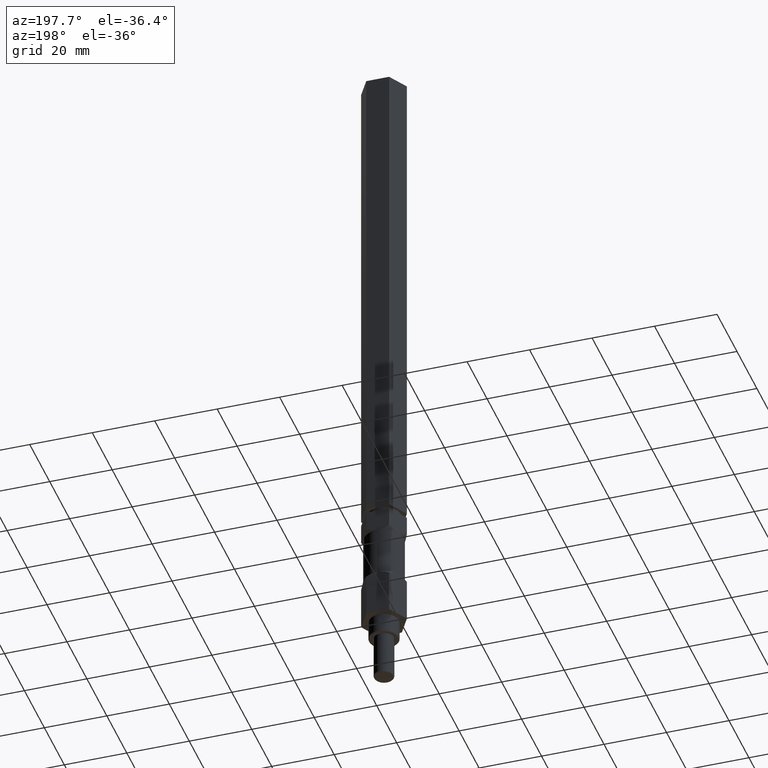
[diagram: clean part render]
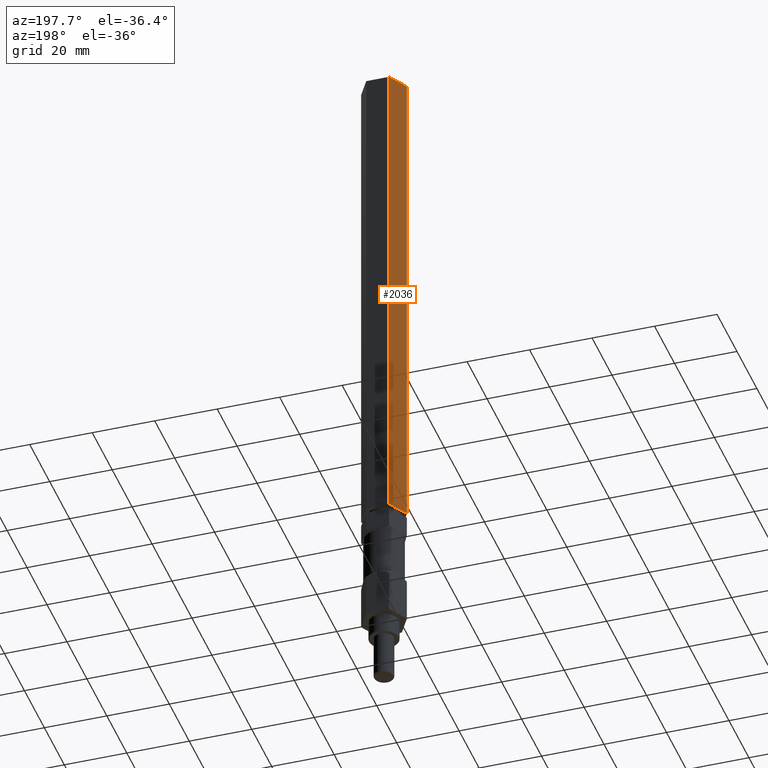
[diagram: same view with one face highlighted and labeled with its STEP entity id]
A machine part, auxiliary view. The second image highlights one B-rep face of the part: STEP entity #2036.
In plain terms, the highlighted planar face has unit normal (0.866, -0.5, 0).
Its self-contained STEP definition (entity closure, byte-faithful):
#10 = CARTESIAN_POINT ( 'NONE',  ( -48.84166809894153971, 35.25928631796895729, -53.68992004042454624 ) ) ;
#84 = LINE ( 'NONE', #676, #2071 ) ;
#140 = VECTOR ( 'NONE', #412, 1000.000000000000000 ) ;
#246 = DIRECTION ( 'NONE',  ( 0.8660254037844390407, -0.4999999999999994449, 0.0000000000000000000 ) ) ;
#390 = EDGE_CURVE ( 'NONE', #1555, #907, #1978, .T. ) ;
#412 = DIRECTION ( 'NONE',  ( -0.0000000000000000000, -0.0000000000000000000, -1.000000000000000000 ) ) ;
#483 = LINE ( 'NONE', #1139, #2043 ) ;
#525 = VERTEX_POINT ( 'NONE', #1290 ) ;
#582 = EDGE_CURVE ( 'NONE', #1855, #907, #84, .T. ) ;
#625 = ORIENTED_EDGE ( 'NONE', *, *, #1291, .T. ) ;
#676 = CARTESIAN_POINT ( 'NONE',  ( -48.84166809894153971, 35.25928631796895729, -53.68992004042454624 ) ) ;
#678 = AXIS2_PLACEMENT_3D ( 'NONE', #1751, #246, #911 ) ;
#903 = CARTESIAN_POINT ( 'NONE',  ( -52.50784230829565757, 28.90928631796895942, 108.1868199595754447 ) ) ;
#907 = VERTEX_POINT ( 'NONE', #1358 ) ;
#911 = DIRECTION ( 'NONE',  ( 0.4999999999999993894, 0.8660254037844389297, 0.0000000000000000000 ) ) ;
#1139 = CARTESIAN_POINT ( 'NONE',  ( -48.84166809894153971, 35.25928631796895729, 108.1868199595754447 ) ) ;
#1181 = VECTOR ( 'NONE', #1420, 1000.000000000000000 ) ;
#1234 = CARTESIAN_POINT ( 'NONE',  ( -52.50784230829565757, 28.90928631796895942, 108.1868199595754447 ) ) ;
#1288 = CARTESIAN_POINT ( 'NONE',  ( -48.84166809894153971, 35.25928631796895729, 108.1868199595754447 ) ) ;
#1290 = CARTESIAN_POINT ( 'NONE',  ( -48.84166809894153971, 35.25928631796895729, 108.1868199595754447 ) ) ;
#1291 = EDGE_CURVE ( 'NONE', #525, #1855, #1766, .T. ) ;
#1358 = CARTESIAN_POINT ( 'NONE',  ( -52.50784230829565757, 28.90928631796895942, -53.68992004042454624 ) ) ;
#1392 = FACE_OUTER_BOUND ( 'NONE', #1497, .T. ) ;
#1412 = ORIENTED_EDGE ( 'NONE', *, *, #2119, .F. ) ;
#1420 = DIRECTION ( 'NONE',  ( -0.0000000000000000000, -0.0000000000000000000, -1.000000000000000000 ) ) ;
#1497 = EDGE_LOOP ( 'NONE', ( #1658, #1540, #1412, #625 ) ) ;
#1540 = ORIENTED_EDGE ( 'NONE', *, *, #390, .F. ) ;
#1555 = VERTEX_POINT ( 'NONE', #1234 ) ;
#1658 = ORIENTED_EDGE ( 'NONE', *, *, #582, .T. ) ;
#1693 = DIRECTION ( 'NONE',  ( -0.4999999999999993894, -0.8660254037844389297, 0.0000000000000000000 ) ) ;
#1751 = CARTESIAN_POINT ( 'NONE',  ( -48.84166809894153971, 35.25928631796895729, 108.1868199595754447 ) ) ;
#1766 = LINE ( 'NONE', #1288, #1181 ) ;
#1798 = DIRECTION ( 'NONE',  ( -0.4999999999999993894, -0.8660254037844389297, 0.0000000000000000000 ) ) ;
#1855 = VERTEX_POINT ( 'NONE', #10 ) ;
#1978 = LINE ( 'NONE', #903, #140 ) ;
#2036 = ADVANCED_FACE ( 'NONE', ( #1392 ), #2063, .F. ) ;
#2043 = VECTOR ( 'NONE', #1798, 1000.000000000000227 ) ;
#2063 = PLANE ( 'NONE',  #678 ) ;
#2071 = VECTOR ( 'NONE', #1693, 1000.000000000000227 ) ;
#2119 = EDGE_CURVE ( 'NONE', #525, #1555, #483, .T. ) ;